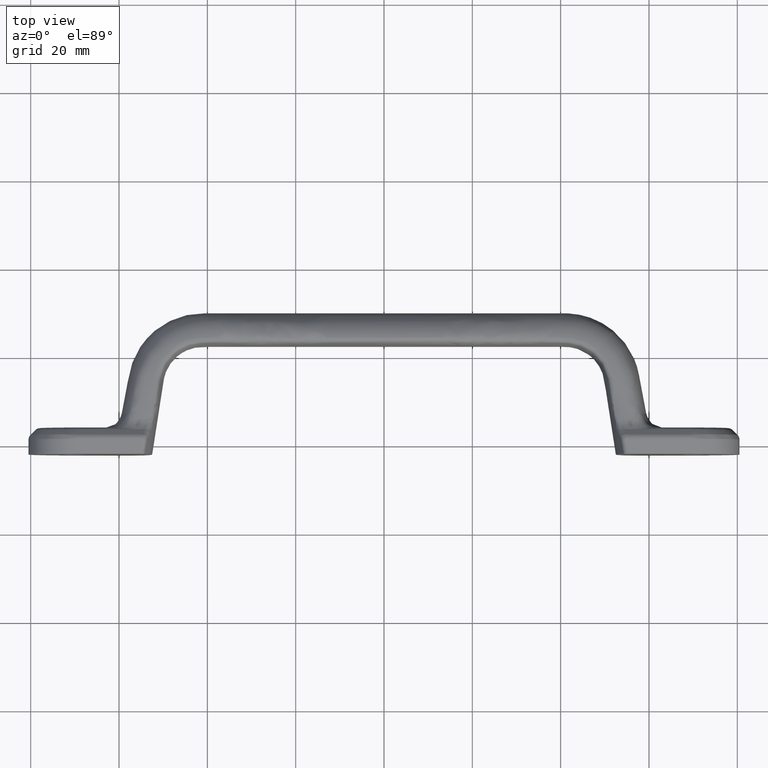
[diagram: clean part render]
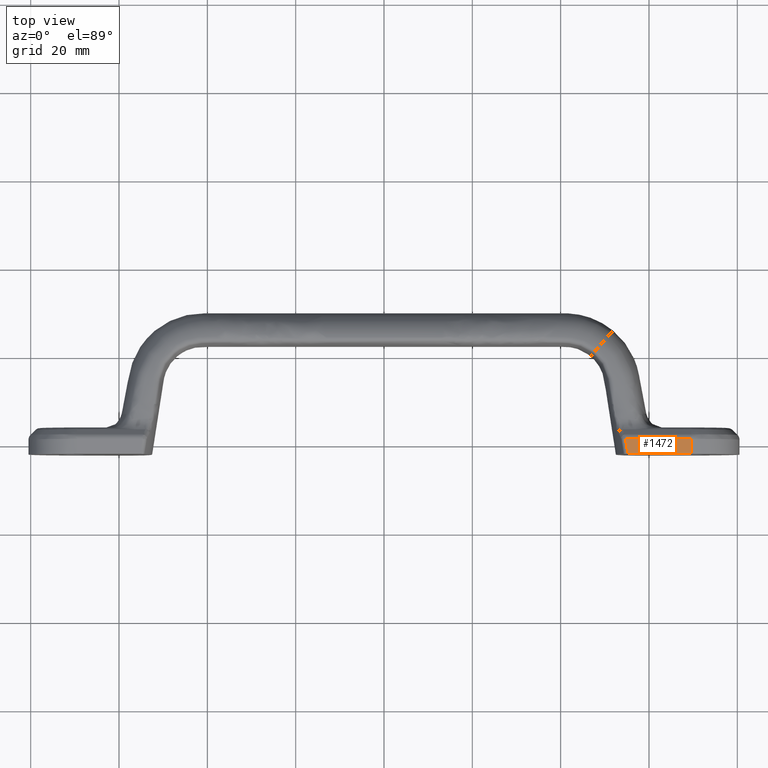
[diagram: same view with one face highlighted and labeled with its STEP entity id]
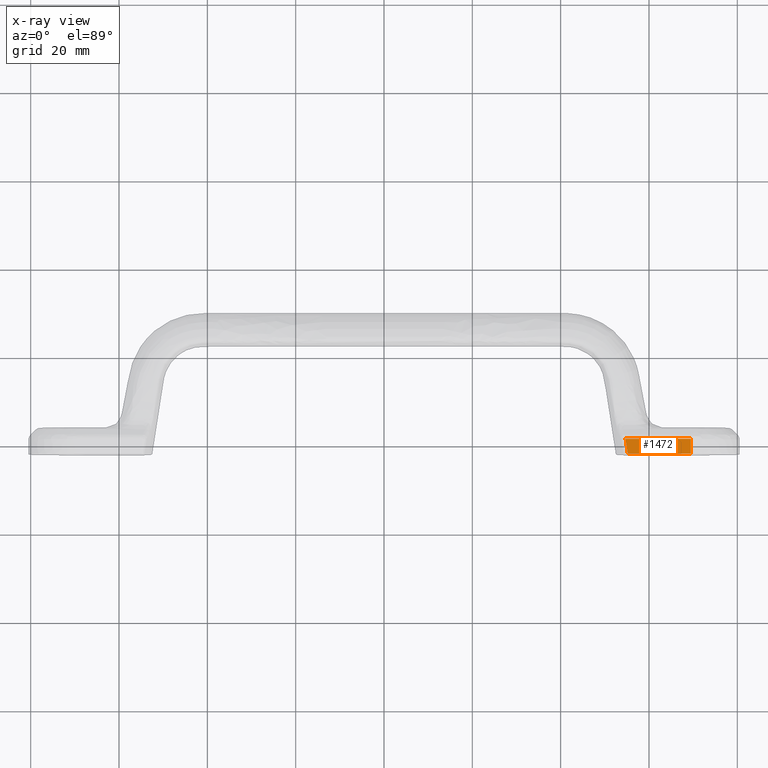
[diagram: x-ray of the same camera — body ghosted, the highlighted face saturated]
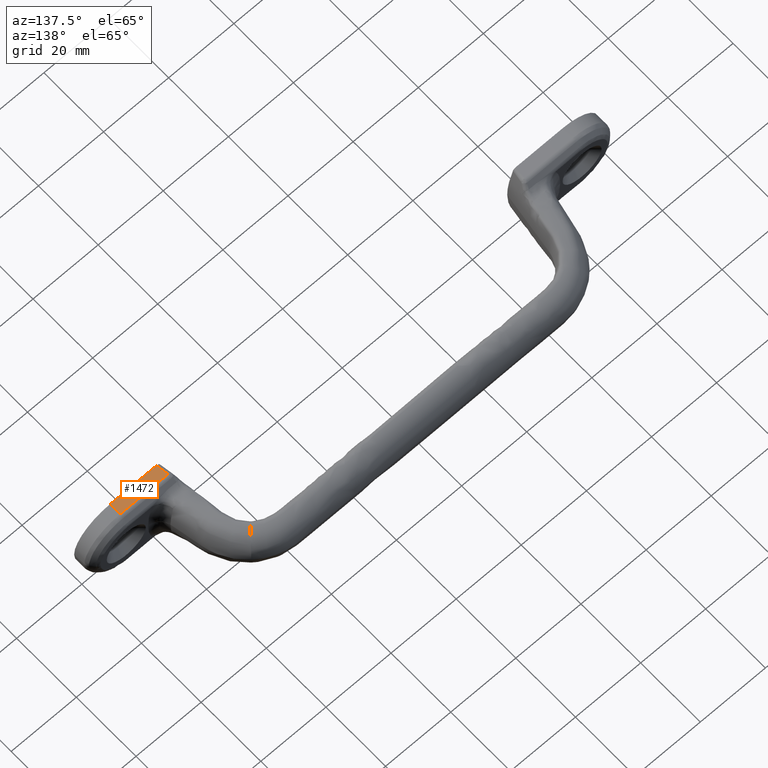
[diagram: same view with one face highlighted and labeled with its STEP entity id]
A machine part, top view. The second image highlights one B-rep face of the part: STEP entity #1472.
The next image is the same camera in x-ray: the body ghosted, the highlighted face saturated — about 0% of this face is hidden behind the body in this view.
A second angle (auxiliary view) of the same face is appended — the face is thin or edge-on in the first view.
In plain terms, the highlighted planar face has unit normal (0, 0, -1).
Its self-contained STEP definition (entity closure, byte-faithful):
#19=PLANE('',#1565);
#32=LINE('',#2105,#74);
#35=LINE('',#3732,#77);
#36=LINE('',#3735,#78);
#37=LINE('',#3736,#79);
#74=VECTOR('',#1619,3.41919680450256);
#77=VECTOR('',#1632,14.2878881004442);
#78=VECTOR('',#1635,3.37865621208755);
#79=VECTOR('',#1636,14.8127033567025);
#398=FACE_OUTER_BOUND('',#489,.T.);
#489=EDGE_LOOP('',(#1056,#1057,#1058,#1059));
#593=VERTEX_POINT('',#2103);
#594=VERTEX_POINT('',#2104);
#624=VERTEX_POINT('',#3721);
#625=VERTEX_POINT('',#3734);
#756=EDGE_CURVE('',#593,#594,#32,.T.);
#793=EDGE_CURVE('',#594,#624,#35,.T.);
#794=EDGE_CURVE('',#625,#624,#36,.T.);
#795=EDGE_CURVE('',#593,#625,#37,.T.);
#1056=ORIENTED_EDGE('',*,*,#756,.T.);
#1057=ORIENTED_EDGE('',*,*,#793,.T.);
#1058=ORIENTED_EDGE('',*,*,#794,.F.);
#1059=ORIENTED_EDGE('',*,*,#795,.F.);
#1472=ADVANCED_FACE('',(#398),#19,.F.);
#1565=AXIS2_PLACEMENT_3D('',#3733,#1633,#1634);
#1619=DIRECTION('',(0.153490666091764,-0.988150097618123,0.));
#1632=DIRECTION('',(1.,0.,0.));
#1633=DIRECTION('center_axis',(0.,0.,-1.));
#1634=DIRECTION('ref_axis',(-1.,0.,0.));
#1635=DIRECTION('',(0.,-1.,0.));
#1636=DIRECTION('',(1.,0.,0.));
#2103=CARTESIAN_POINT('',(554.687327671762,-78.6213203440571,11.));
#2104=CARTESIAN_POINT('',(555.212142467269,-82.0000000001264,11.000000001));
#2105=CARTESIAN_POINT('',(554.949735068625,-80.310660172,11.));
#3721=CARTESIAN_POINT('',(569.500030567714,-82.,11.0000000012503));
#3732=CARTESIAN_POINT('',(566.500030518,-82.,11.0000000029999));
#3733=CARTESIAN_POINT('Origin',(569.500030561,-82.,11.));
#3734=CARTESIAN_POINT('',(569.500031028464,-78.6213437879125,10.9999999981707));
#3735=CARTESIAN_POINT('',(569.500030561,-80.310660172,11.));
#3736=CARTESIAN_POINT('',(562.049241007,-78.621320344,11.));